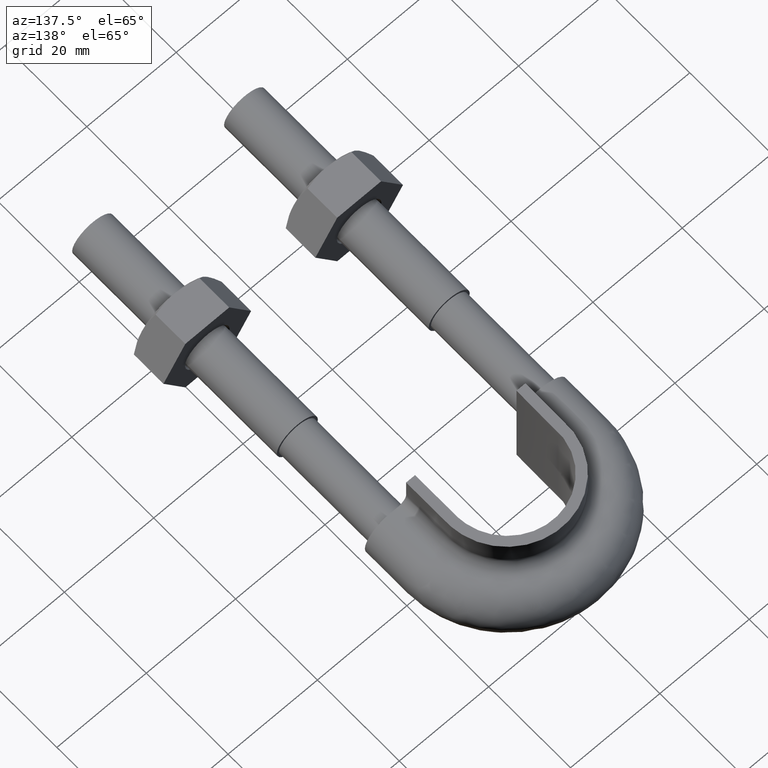
[diagram: clean part render]
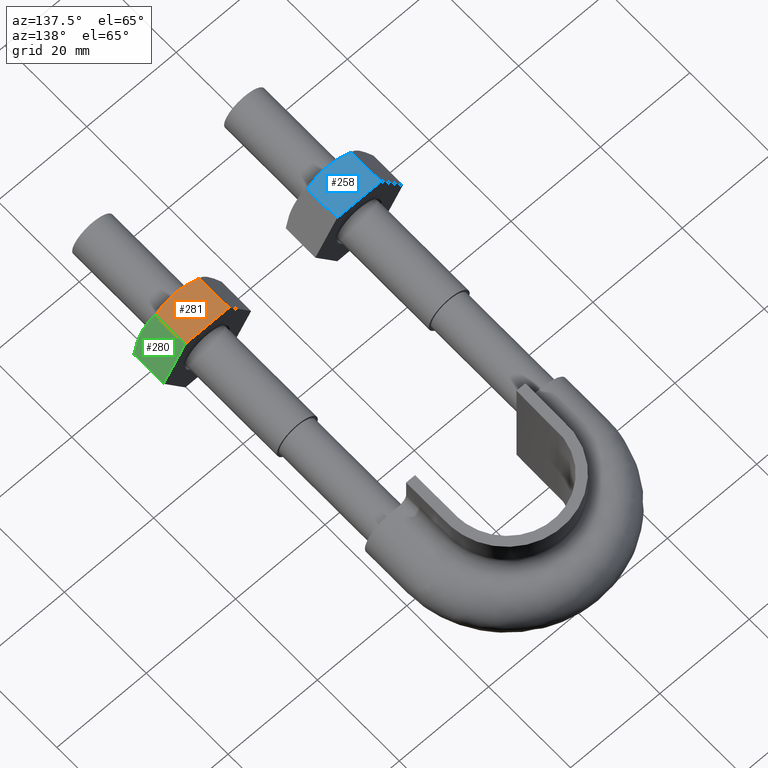
[diagram: same view with three faces highlighted in distinct colors, each labeled with its STEP entity id]
A machine part, auxiliary view with three faces highlighted in distinct colors.
Their STEP definitions:

[orange] entity #281 — the highlighted planar face has unit normal (0, -0, -1).
#281 = ADVANCED_FACE( '', ( #437 ), #438, .F. );
#437 = FACE_OUTER_BOUND( '', #1516, .T. );
#438 = PLANE( '', #1517 );
#1516 = EDGE_LOOP( '', ( #1992, #1993, #1994, #1995, #1996 ) );
#1517 = AXIS2_PLACEMENT_3D( '', #1997, #1998, #1999 );
#1992 = ORIENTED_EDGE( '', *, *, #2225, .F. );
#1993 = ORIENTED_EDGE( '', *, *, #2220, .F. );
#1994 = ORIENTED_EDGE( '', *, *, #2226, .F. );
#1995 = ORIENTED_EDGE( '', *, *, #2212, .F. );
#1996 = ORIENTED_EDGE( '', *, *, #2227, .F. );
#1997 = CARTESIAN_POINT( '', ( 12.0925227118882, 28.0000000000000, 8.49999999999999 ) );
#1998 = DIRECTION( '', ( 0.000000000000000, -3.06151588455594E-016, -1.00000000000000 ) );
#1999 = DIRECTION( '', ( -1.00000000000000, 2.44921270764476E-016, -7.49830360911069E-032 ) );
#2212 = EDGE_CURVE( '', #2448, #2450, #2451, .T. );
#2220 = EDGE_CURVE( '', #2462, #2411, #2464, .T. );
#2225 = EDGE_CURVE( '', #2411, #2469, #2470, .T. );
#2226 = EDGE_CURVE( '', #2450, #2462, #2471, .F. );
#2227 = EDGE_CURVE( '', #2469, #2448, #2472, .T. );
#2411 = VERTEX_POINT( '', #2957 );
#2448 = VERTEX_POINT( '', #3012 );
#2450 = VERTEX_POINT( '', #3014 );
#2451 = LINE( '', #3015, #3016 );
#2462 = VERTEX_POINT( '', #3037 );
#2464 = B_SPLINE_CURVE_WITH_KNOTS( '', 3, ( #3039, #3040, #3041, #3042, #3043, #3044 ), .UNSPECIFIED., .F., .F., ( 4, 2, 4 ), ( 4.83064900408916E-007, 0.00246777364959070, 0.00493506423428098 ), .UNSPECIFIED. );
#2469 = VERTEX_POINT( '', #3061 );
#2470 = B_SPLINE_CURVE_WITH_KNOTS( '', 3, ( #3062, #3063, #3064, #3065, #3066, #3067, #3068, #3069 ), .UNSPECIFIED., .F., .F., ( 4, 2, 2, 4 ), ( 0.00493506423428098, 0.00616384870526321, 0.00739263317624543, 0.00985020211820987 ), .UNSPECIFIED. );
#2471 = LINE( '', #3070, #3071 );
#2472 = LINE( '', #3072, #3073 );
#2957 = CARTESIAN_POINT( '', ( 17.0000000000000, 20.0000000000000, 8.49999999999999 ) );
#3012 = CARTESIAN_POINT( '', ( 12.1225006406971, 28.0000000000000, 8.49999999999999 ) );
#3014 = CARTESIAN_POINT( '', ( 21.8774993593029, 28.0000000000000, 8.49999999999999 ) );
#3015 = CARTESIAN_POINT( '', ( 21.9000000000000, 28.0000000000000, 8.49999999999999 ) );
#3016 = VECTOR( '', #3310, 1000.00000000000 );
#3037 = CARTESIAN_POINT( '', ( 21.8774993593029, 20.7505553499465, 8.49999999999999 ) );
#3039 = CARTESIAN_POINT( '', ( 21.8774993593029, 20.7505553499465, 8.49999999999999 ) );
#3040 = CARTESIAN_POINT( '', ( 21.0793946307412, 20.5212203171277, 8.49999999999999 ) );
#3041 = CARTESIAN_POINT( '', ( 20.2755256942573, 20.3324525365440, 8.49999999999999 ) );
#3042 = CARTESIAN_POINT( '', ( 18.6512346174560, 20.0714148540586, 8.49999999999999 ) );
#3043 = CARTESIAN_POINT( '', ( 17.8306909832419, 20.0000000000000, 8.49999999999999 ) );
#3044 = CARTESIAN_POINT( '', ( 17.0000000000000, 20.0000000000000, 8.49999999999999 ) );
#3061 = CARTESIAN_POINT( '', ( 12.1225006406971, 20.7505553499465, 8.49999999999999 ) );
#3062 = CARTESIAN_POINT( '', ( 17.0000000000000, 20.0000000000000, 8.49999999999999 ) );
#3063 = CARTESIAN_POINT( '', ( 16.5862910567866, 20.0000000000000, 8.49999999999999 ) );
#3064 = CARTESIAN_POINT( '', ( 16.1705130745725, 20.0177112081763, 8.49999999999999 ) );
#3065 = CARTESIAN_POINT( '', ( 15.3480000229777, 20.0863021936212, 8.49999999999999 ) );
#3066 = CARTESIAN_POINT( '', ( 14.9394776662170, 20.1371116504194, 8.49999999999999 ) );
#3067 = CARTESIAN_POINT( '', ( 13.7211308743330, 20.3331494013913, 8.49999999999999 ) );
#3068 = CARTESIAN_POINT( '', ( 12.9184999349108, 20.5218253127355, 8.49999999999999 ) );
#3069 = CARTESIAN_POINT( '', ( 12.1225006406971, 20.7505553499465, 8.49999999999999 ) );
#3070 = CARTESIAN_POINT( '', ( 21.8774993593029, 28.0000000000000, 8.49999999999999 ) );
#3071 = VECTOR( '', #3325, 1000.00000000000 );
#3072 = CARTESIAN_POINT( '', ( 12.1225006406971, 28.0000000000000, 8.49999999999999 ) );
#3073 = VECTOR( '', #3326, 1000.00000000000 );
#3310 = DIRECTION( '', ( 1.00000000000000, -2.44921270764476E-016, 0.000000000000000 ) );
#3325 = DIRECTION( '', ( 2.44921270764475E-016, 1.00000000000000, -3.06151588455594E-016 ) );
#3326 = DIRECTION( '', ( 2.44921270764475E-016, 1.00000000000000, -3.06151588455594E-016 ) );

[blue] entity #258 — the highlighted planar face has unit normal (0, -0, -1).
#258 = ADVANCED_FACE( '', ( #386 ), #387, .F. );
#386 = FACE_OUTER_BOUND( '', #1465, .T. );
#387 = PLANE( '', #1466 );
#1465 = EDGE_LOOP( '', ( #1819, #1820, #1821, #1822, #1823 ) );
#1466 = AXIS2_PLACEMENT_3D( '', #1824, #1825, #1826 );
#1819 = ORIENTED_EDGE( '', *, *, #2173, .F. );
#1820 = ORIENTED_EDGE( '', *, *, #2168, .F. );
#1821 = ORIENTED_EDGE( '', *, *, #2174, .F. );
#1822 = ORIENTED_EDGE( '', *, *, #2160, .F. );
#1823 = ORIENTED_EDGE( '', *, *, #2175, .F. );
#1824 = CARTESIAN_POINT( '', ( -21.9074772881118, 28.0000000000000, 8.49999999999999 ) );
#1825 = DIRECTION( '', ( 0.000000000000000, -3.06151588455594E-016, -1.00000000000000 ) );
#1826 = DIRECTION( '', ( -1.00000000000000, 2.44921270764476E-016, -7.49830360911069E-032 ) );
#2160 = EDGE_CURVE( '', #2362, #2364, #2365, .T. );
#2168 = EDGE_CURVE( '', #2376, #2325, #2378, .T. );
#2173 = EDGE_CURVE( '', #2325, #2383, #2384, .T. );
#2174 = EDGE_CURVE( '', #2364, #2376, #2385, .F. );
#2175 = EDGE_CURVE( '', #2383, #2362, #2386, .T. );
#2325 = VERTEX_POINT( '', #2785 );
#2362 = VERTEX_POINT( '', #2840 );
#2364 = VERTEX_POINT( '', #2842 );
#2365 = LINE( '', #2843, #2844 );
#2376 = VERTEX_POINT( '', #2865 );
#2378 = B_SPLINE_CURVE_WITH_KNOTS( '', 3, ( #2867, #2868, #2869, #2870, #2871, #2872 ), .UNSPECIFIED., .F., .F., ( 4, 2, 4 ), ( 4.83064900408916E-007, 0.00246777364959070, 0.00493506423428098 ), .UNSPECIFIED. );
#2383 = VERTEX_POINT( '', #2889 );
#2384 = B_SPLINE_CURVE_WITH_KNOTS( '', 3, ( #2890, #2891, #2892, #2893, #2894, #2895, #2896, #2897 ), .UNSPECIFIED., .F., .F., ( 4, 2, 2, 4 ), ( 0.00493506423428098, 0.00616384870526321, 0.00739263317624543, 0.00985020211820987 ), .UNSPECIFIED. );
#2385 = LINE( '', #2898, #2899 );
#2386 = LINE( '', #2900, #2901 );
#2785 = CARTESIAN_POINT( '', ( -17.0000000000000, 20.0000000000000, 8.49999999999999 ) );
#2840 = CARTESIAN_POINT( '', ( -21.8774993593029, 28.0000000000000, 8.49999999999999 ) );
#2842 = CARTESIAN_POINT( '', ( -12.1225006406971, 28.0000000000000, 8.49999999999999 ) );
#2843 = CARTESIAN_POINT( '', ( -12.1000000000000, 28.0000000000000, 8.49999999999999 ) );
#2844 = VECTOR( '', #3226, 1000.00000000000 );
#2865 = CARTESIAN_POINT( '', ( -12.1225006406971, 20.7505553499465, 8.49999999999999 ) );
#2867 = CARTESIAN_POINT( '', ( -12.1225006406971, 20.7505553499465, 8.49999999999999 ) );
#2868 = CARTESIAN_POINT( '', ( -12.9206053692588, 20.5212203171278, 8.49999999999999 ) );
#2869 = CARTESIAN_POINT( '', ( -13.7244743057427, 20.3324525365440, 8.49999999999999 ) );
#2870 = CARTESIAN_POINT( '', ( -15.3487653825440, 20.0714148540586, 8.49999999999999 ) );
#2871 = CARTESIAN_POINT( '', ( -16.1693090167582, 20.0000000000000, 8.49999999999999 ) );
#2872 = CARTESIAN_POINT( '', ( -17.0000000000000, 20.0000000000000, 8.49999999999999 ) );
#2889 = CARTESIAN_POINT( '', ( -21.8774993593029, 20.7505553499465, 8.49999999999999 ) );
#2890 = CARTESIAN_POINT( '', ( -17.0000000000000, 20.0000000000000, 8.49999999999999 ) );
#2891 = CARTESIAN_POINT( '', ( -17.4137089432134, 20.0000000000000, 8.49999999999999 ) );
#2892 = CARTESIAN_POINT( '', ( -17.8294869254275, 20.0177112081763, 8.49999999999999 ) );
#2893 = CARTESIAN_POINT( '', ( -18.6519999770223, 20.0863021936212, 8.49999999999999 ) );
#2894 = CARTESIAN_POINT( '', ( -19.0605223337830, 20.1371116504194, 8.49999999999999 ) );
#2895 = CARTESIAN_POINT( '', ( -20.2788691256670, 20.3331494013913, 8.49999999999999 ) );
#2896 = CARTESIAN_POINT( '', ( -21.0815000650892, 20.5218253127355, 8.49999999999999 ) );
#2897 = CARTESIAN_POINT( '', ( -21.8774993593029, 20.7505553499465, 8.49999999999999 ) );
#2898 = CARTESIAN_POINT( '', ( -12.1225006406971, 28.0000000000000, 8.49999999999999 ) );
#2899 = VECTOR( '', #3241, 1000.00000000000 );
#2900 = CARTESIAN_POINT( '', ( -21.8774993593029, 28.0000000000000, 8.49999999999999 ) );
#2901 = VECTOR( '', #3242, 1000.00000000000 );
#3226 = DIRECTION( '', ( 1.00000000000000, -2.44921270764476E-016, 0.000000000000000 ) );
#3241 = DIRECTION( '', ( 2.44921270764475E-016, 1.00000000000000, -3.06151588455594E-016 ) );
#3242 = DIRECTION( '', ( 2.44921270764475E-016, 1.00000000000000, -3.06151588455594E-016 ) );

[green] entity #280 — the highlighted planar face has unit normal (-0.866, 0, -0.5).
#280 = ADVANCED_FACE( '', ( #435 ), #436, .F. );
#435 = FACE_OUTER_BOUND( '', #1514, .T. );
#436 = PLANE( '', #1515 );
#1514 = EDGE_LOOP( '', ( #1984, #1985, #1986, #1987, #1988 ) );
#1515 = AXIS2_PLACEMENT_3D( '', #1989, #1990, #1991 );
#1984 = ORIENTED_EDGE( '', *, *, #2218, .F. );
#1985 = ORIENTED_EDGE( '', *, *, #2223, .F. );
#1986 = ORIENTED_EDGE( '', *, *, #2217, .F. );
#1987 = ORIENTED_EDGE( '', *, *, #2214, .F. );
#1988 = ORIENTED_EDGE( '', *, *, #2224, .F. );
#1989 = CARTESIAN_POINT( '', ( 21.9074772881118, 28.0000000000000, 8.49999999999999 ) );
#1990 = DIRECTION( '', ( -0.866025403784439, 5.90322481814055E-017, -0.500000000000000 ) );
#1991 = DIRECTION( '', ( -0.500000000000000, 3.87595688393741E-016, 0.866025403784439 ) );
#2214 = EDGE_CURVE( '', #2452, #2434, #2454, .T. );
#2217 = EDGE_CURVE( '', #2434, #2455, #2459, .F. );
#2218 = EDGE_CURVE( '', #2412, #2460, #2461, .T. );
#2223 = EDGE_CURVE( '', #2455, #2412, #2467, .T. );
#2224 = EDGE_CURVE( '', #2460, #2452, #2468, .T. );
#2412 = VERTEX_POINT( '', #2958 );
#2434 = VERTEX_POINT( '', #2995 );
#2452 = VERTEX_POINT( '', #3017 );
#2454 = LINE( '', #3019, #3020 );
#2455 = VERTEX_POINT( '', #3021 );
#2459 = LINE( '', #3026, #3027 );
#2460 = VERTEX_POINT( '', #3028 );
#2461 = B_SPLINE_CURVE_WITH_KNOTS( '', 3, ( #3029, #3030, #3031, #3032, #3033, #3034, #3035, #3036 ), .UNSPECIFIED., .F., .F., ( 4, 2, 2, 4 ), ( 0.00493529902949373, 0.00616408349151779, 0.00739286795354186, 0.00985043687758998 ), .UNSPECIFIED. );
#2467 = B_SPLINE_CURVE_WITH_KNOTS( '', 3, ( #3053, #3054, #3055, #3056, #3057, #3058 ), .UNSPECIFIED., .F., .F., ( 4, 2, 4 ), ( 7.17194508350736E-007, 0.00246800811200104, 0.00493529902949373 ), .UNSPECIFIED. );
#2468 = LINE( '', #3059, #3060 );
#2958 = CARTESIAN_POINT( '', ( 24.3612159321677, 20.0000000000000, 4.24999999999999 ) );
#2995 = CARTESIAN_POINT( '', ( 26.7999656118192, 28.0000000000000, 0.0259616479013710 ) );
#3017 = CARTESIAN_POINT( '', ( 21.9224662525163, 28.0000000000000, 8.47403835209861 ) );
#3019 = CARTESIAN_POINT( '', ( 21.9112159321677, 28.0000000000000, 8.49352447854374 ) );
#3020 = VECTOR( '', #3314, 1000.00000000000 );
#3021 = CARTESIAN_POINT( '', ( 26.7999656118192, 20.7505553499465, 0.0259616479013758 ) );
#3026 = CARTESIAN_POINT( '', ( 26.7999656118192, 28.0000000000000, 0.0259616479013736 ) );
#3027 = VECTOR( '', #3319, 1000.00000000000 );
#3028 = CARTESIAN_POINT( '', ( 21.9224662525163, 20.7505553499465, 8.47403835209862 ) );
#3029 = CARTESIAN_POINT( '', ( 24.3612159321677, 20.0000000000000, 4.24999999999999 ) );
#3030 = CARTESIAN_POINT( '', ( 24.1543611182923, 20.0000000000000, 4.60828304742250 ) );
#3031 = CARTESIAN_POINT( '', ( 23.9464725213665, 20.0177112141220, 4.96835665961216 ) );
#3032 = CARTESIAN_POINT( '', ( 23.5352164313390, 20.0863020976799, 5.68067310246197 ) );
#3033 = CARTESIAN_POINT( '', ( 23.3309553731693, 20.1371114863339, 6.03446363321954 ) );
#3034 = CARTESIAN_POINT( '', ( 22.7217820897774, 20.3331491064655, 7.08958271066798 ) );
#3035 = CARTESIAN_POINT( '', ( 22.3204663665641, 20.5218250443850, 7.78468193314961 ) );
#3036 = CARTESIAN_POINT( '', ( 21.9224662525163, 20.7505553499465, 8.47403835209862 ) );
#3053 = CARTESIAN_POINT( '', ( 26.7999656118192, 20.7505553499465, 0.0259616479013755 ) );
#3054 = CARTESIAN_POINT( '', ( 26.4009138450471, 20.5212206605155, 0.717139582800697 ) );
#3055 = CARTESIAN_POINT( '', ( 25.9989797518544, 20.3324529479805, 1.41330985350471 ) );
#3056 = CARTESIAN_POINT( '', ( 25.1868342904858, 20.0714150925759, 2.81998705573152 ) );
#3057 = CARTESIAN_POINT( '', ( 24.7765621700864, 20.0000000000000, 3.53059921319231 ) );
#3058 = CARTESIAN_POINT( '', ( 24.3612159321677, 20.0000000000000, 4.24999999999999 ) );
#3059 = CARTESIAN_POINT( '', ( 21.9224662525163, 28.0000000000000, 8.47403835209861 ) );
#3060 = VECTOR( '', #3324, 1000.00000000000 );
#3314 = DIRECTION( '', ( 0.500000000000000, -3.87595688393741E-016, -0.866025403784439 ) );
#3319 = DIRECTION( '', ( 2.44921270764475E-016, 1.00000000000000, -3.06151588455594E-016 ) );
#3324 = DIRECTION( '', ( 2.44921270764475E-016, 1.00000000000000, -3.06151588455594E-016 ) );